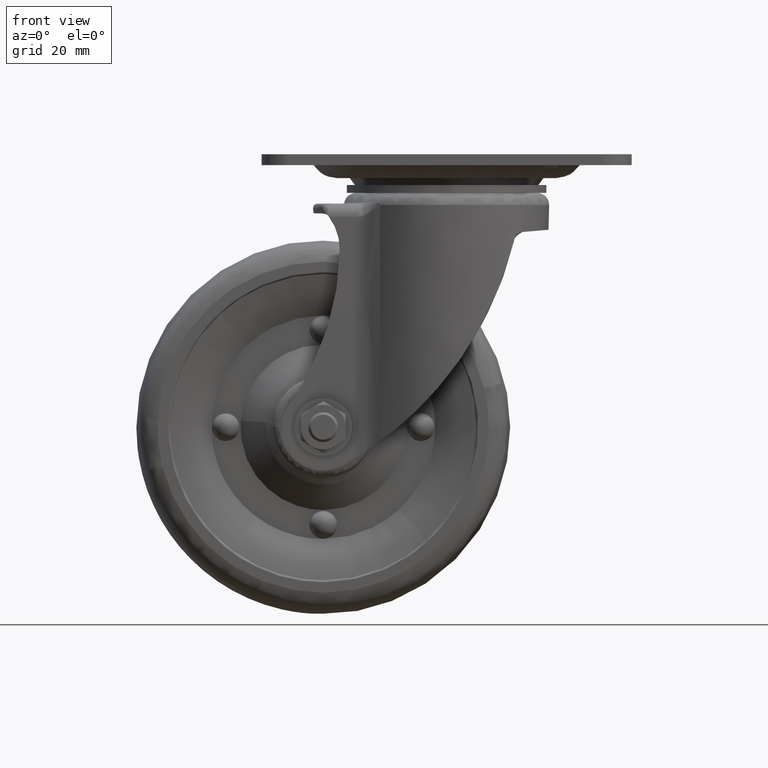
[diagram: clean part render]
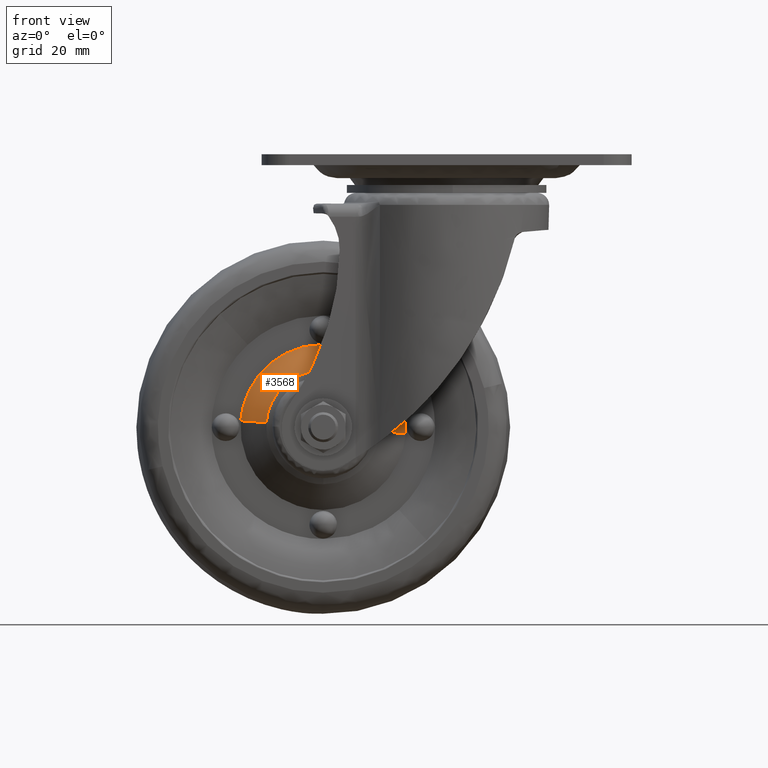
[diagram: same view with one face highlighted and labeled with its STEP entity id]
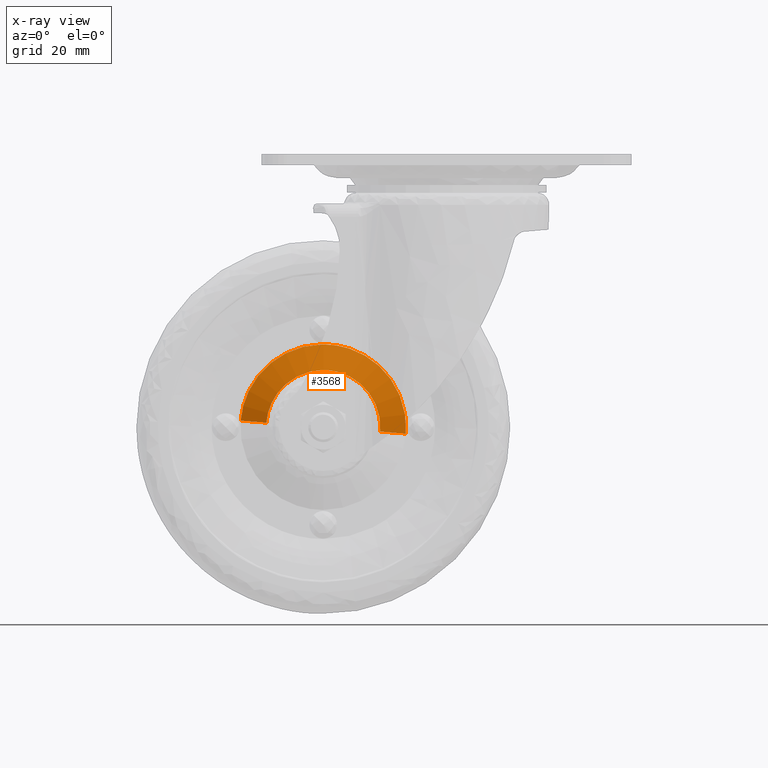
[diagram: x-ray of the same camera — body ghosted, the highlighted face saturated]
A machine part, front view. The second image highlights one B-rep face of the part: STEP entity #3568.
The next image is the same camera in x-ray: the body ghosted, the highlighted face saturated — about 0% of this face is hidden behind the body in this view.
In plain terms, the highlighted face is a freeform B-spline surface patch.
Its self-contained STEP definition (entity closure, byte-faithful):
#3316=CARTESIAN_POINT('',(-32.999588012695313,-11.073887561654100,-57.722874076399258));
#3317=VERTEX_POINT('',#3316);
#3331=CARTESIAN_POINT('',(-48.229201947144581,-11.073887561630411,-71.800984388600369));
#3332=VERTEX_POINT('',#3331);
#3333=CARTESIAN_POINT('',(-32.999588012695313,-11.073887561654100,-57.722874076399258));
#3334=CARTESIAN_POINT('',(-47.121230636228539,-11.073887561642255,-57.722874076395847));
#3335=CARTESIAN_POINT('',(-48.229201947144581,-11.073887561630409,-71.800984388600369));
#3343=(BOUNDED_CURVE()B_SPLINE_CURVE(2,(#3333,#3334,#3335),.UNSPECIFIED.,.F.,.U.)B_SPLINE_CURVE_WITH_KNOTS((3,3),(0.500000000000000,0.736331300627388),.UNSPECIFIED.)CURVE()GEOMETRIC_REPRESENTATION_ITEM()RATIONAL_B_SPLINE_CURVE((1.0,0.723120658611498,0.969723356160591))REPRESENTATION_ITEM(''));
#3344=EDGE_CURVE('',#3317,#3332,#3343,.T.);
#3414=CARTESIAN_POINT('',(-17.769974078246040,-11.073887561630411,-74.198177611421528));
#3415=VERTEX_POINT('',#3414);
#3429=CARTESIAN_POINT('',(-17.769974078246037,-11.073887561630407,-74.198177611421528));
#3430=CARTESIAN_POINT('',(-17.722881089108039,-11.073887561630841,-73.599804450011234));
#3431=CARTESIAN_POINT('',(-17.722881089109759,-11.073887561631301,-72.999581000017557));
#3432=CARTESIAN_POINT('',(-17.722881089153312,-11.073887561643151,-57.722874076402441));
#3433=CARTESIAN_POINT('',(-32.999588012695313,-11.073887561654100,-57.722874076399258));
#3441=(BOUNDED_CURVE()B_SPLINE_CURVE(2,(#3429,#3430,#3431,#3432,#3433),.UNSPECIFIED.,.F.,.U.)B_SPLINE_CURVE_WITH_KNOTS((3,2,3),(0.236331300627388,0.250000000000000,0.500000000000000),.UNSPECIFIED.)CURVE()GEOMETRIC_REPRESENTATION_ITEM()RATIONAL_B_SPLINE_CURVE((0.969723356160591,0.983986122575049,1.0,0.707106781186547,1.0))REPRESENTATION_ITEM(''));
#3442=EDGE_CURVE('',#3415,#3317,#3441,.T.);
#3467=CARTESIAN_POINT('',(-55.085014776291189,-6.100000502494033,-71.261420217753980));
#3468=VERTEX_POINT('',#3467);
#3469=CARTESIAN_POINT('',(-48.229201947144581,-11.073887561630411,-71.800984388600369));
#3470=CARTESIAN_POINT('',(-55.085014776291189,-6.100000502494033,-71.261420217753980));
#3471=QUASI_UNIFORM_CURVE('',1,(#3469,#3470),.UNSPECIFIED.,.F.,.U.);
#3472=EDGE_CURVE('',#3332,#3468,#3471,.T.);
#3491=CARTESIAN_POINT('',(-10.914161249099440,-6.100000502494034,-74.737741782267932));
#3492=VERTEX_POINT('',#3491);
#3506=CARTESIAN_POINT('',(-17.769974078246040,-11.073887561630411,-74.198177611421528));
#3507=CARTESIAN_POINT('',(-10.914161249099440,-6.100000502494034,-74.737741782267932));
#3508=QUASI_UNIFORM_CURVE('',1,(#3506,#3507),.UNSPECIFIED.,.F.,.U.);
#3509=EDGE_CURVE('',#3415,#3492,#3508,.T.);
#3514=CARTESIAN_POINT('',(-48.057806626477522,-11.198234738133070,-71.814473493368041));
#3515=CARTESIAN_POINT('',(-46.872699119834600,-11.198234738133069,-56.756254879585825));
#3516=CARTESIAN_POINT('',(-31.814480506052409,-11.198234738133070,-57.941362386228739));
#3517=CARTESIAN_POINT('',(-16.756261892270199,-11.198234738133069,-59.126469892871647));
#3518=CARTESIAN_POINT('',(-17.941369398913100,-11.198234738133070,-74.184688506653856));
#3519=CARTESIAN_POINT('',(-55.260694980035787,-5.972544646604283,-71.247593885875830));
#3520=CARTESIAN_POINT('',(-53.508707865900682,-5.972544646604284,-48.986486918535370));
#3521=CARTESIAN_POINT('',(-31.247600898560201,-5.972544646604283,-50.738474032670467));
#3522=CARTESIAN_POINT('',(-8.986493931219727,-5.972544646604284,-52.490461146805600));
#3523=CARTESIAN_POINT('',(-10.738481045354840,-5.972544646604283,-74.751568114146068));
#3531=(BOUNDED_SURFACE()B_SPLINE_SURFACE(2,1,((#3514,#3519),(#3515,#3520),(#3516,#3521),(#3517,#3522),(#3518,#3523)),.UNSPECIFIED.,.F.,.F.,.U.)B_SPLINE_SURFACE_WITH_KNOTS((3,2,3),(2,2),(0.0,36.997460500687907,73.994921001375829),(0.0,8.916882305824046),.UNSPECIFIED.)GEOMETRIC_REPRESENTATION_ITEM()RATIONAL_B_SPLINE_SURFACE(((1.0,1.0),(0.707106781186548,0.707106781186548),(1.0,1.0),(0.707106781186548,0.707106781186548),(1.0,1.0)))REPRESENTATION_ITEM('')SURFACE());
#3532=ORIENTED_EDGE('',*,*,#3442,.F.);
#3533=ORIENTED_EDGE('',*,*,#3509,.T.);
#3534=CARTESIAN_POINT('',(-32.999588012695313,-6.100000502495230,-50.845861713284840));
#3535=VERTEX_POINT('',#3534);
#3536=CARTESIAN_POINT('',(-10.914161249099433,-6.100000502494034,-74.737741782267932));
#3537=CARTESIAN_POINT('',(-10.845868725967602,-6.100000502494057,-73.870003001410353));
#3538=CARTESIAN_POINT('',(-10.845868725967630,-6.100000502494079,-72.999581000011077));
#3539=CARTESIAN_POINT('',(-10.845868725968451,-6.100000502494678,-50.845861713284904));
#3540=CARTESIAN_POINT('',(-32.999588012695313,-6.100000502495230,-50.845861713284840));
#3548=(BOUNDED_CURVE()B_SPLINE_CURVE(2,(#3536,#3537,#3538,#3539,#3540),.UNSPECIFIED.,.F.,.U.)B_SPLINE_CURVE_WITH_KNOTS((3,2,3),(0.236331300632675,0.250000000000000,0.500000000000000),.UNSPECIFIED.)CURVE()GEOMETRIC_REPRESENTATION_ITEM()RATIONAL_B_SPLINE_CURVE((0.969723356171624,0.983986122581243,1.0,0.707106781186547,1.0))REPRESENTATION_ITEM(''));
#3549=EDGE_CURVE('',#3492,#3535,#3548,.T.);
#3550=ORIENTED_EDGE('',*,*,#3549,.T.);
#3551=CARTESIAN_POINT('',(-32.999588012695313,-6.100000502495230,-50.845861713284840));
#3552=CARTESIAN_POINT('',(-53.478275476199812,-6.100000502494630,-50.845861713284776));
#3553=CARTESIAN_POINT('',(-55.085014776291189,-6.100000502494033,-71.261420217753980));
#3561=(BOUNDED_CURVE()B_SPLINE_CURVE(2,(#3551,#3552,#3553),.UNSPECIFIED.,.F.,.U.)B_SPLINE_CURVE_WITH_KNOTS((3,3),(0.500000000000000,0.736331300632675),.UNSPECIFIED.)CURVE()GEOMETRIC_REPRESENTATION_ITEM()RATIONAL_B_SPLINE_CURVE((1.0,0.723120658605304,0.969723356171624))REPRESENTATION_ITEM(''));
#3562=EDGE_CURVE('',#3535,#3468,#3561,.T.);
#3563=ORIENTED_EDGE('',*,*,#3562,.T.);
#3564=ORIENTED_EDGE('',*,*,#3472,.F.);
#3565=ORIENTED_EDGE('',*,*,#3344,.F.);
#3566=EDGE_LOOP('',(#3532,#3533,#3550,#3563,#3564,#3565));
#3567=FACE_OUTER_BOUND('',#3566,.T.);
#3568=ADVANCED_FACE('',(#3567),#3531,.T.);